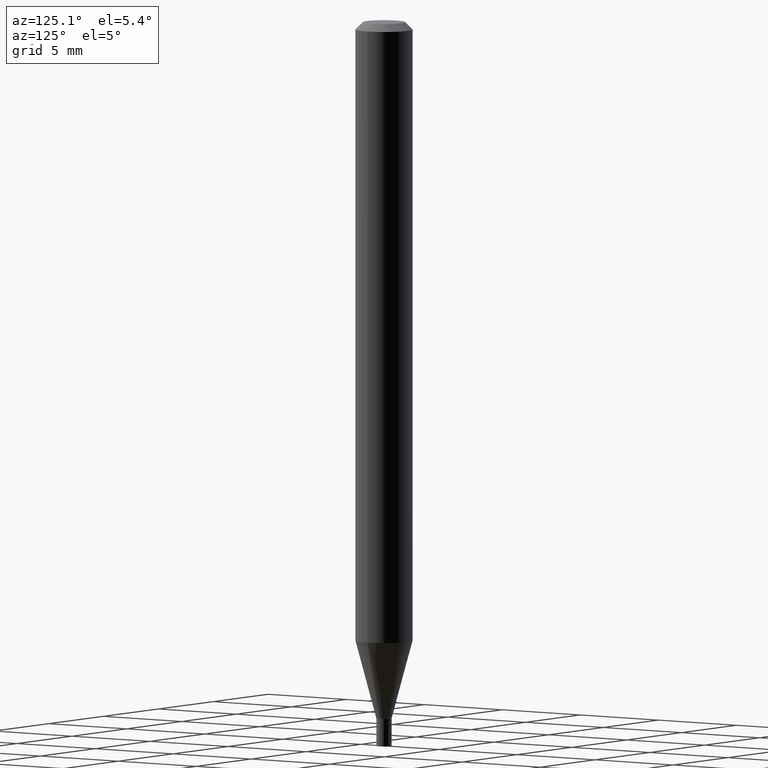
[diagram: clean part render]
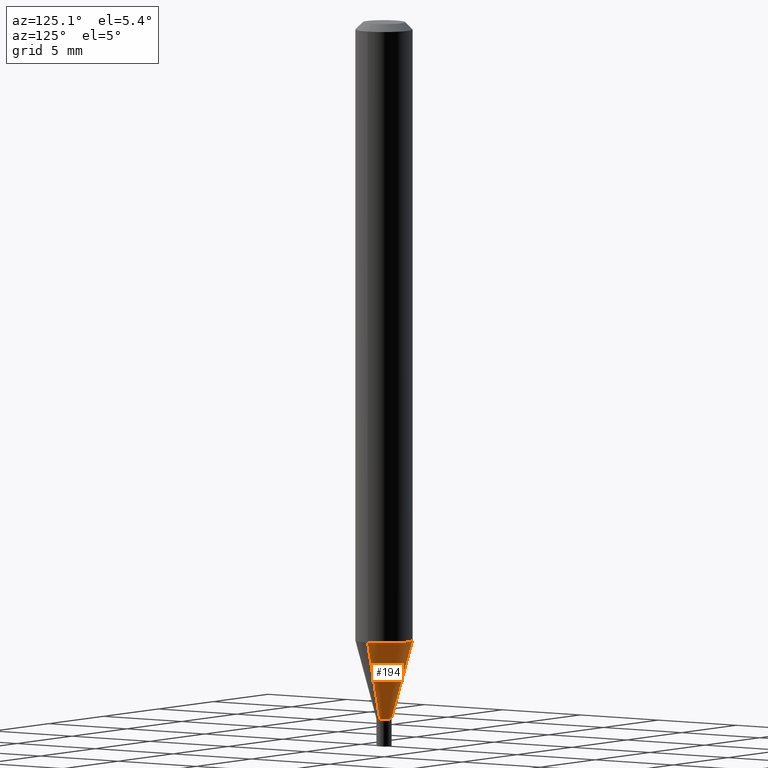
[diagram: same view with one face highlighted and labeled with its STEP entity id]
A machine part, auxiliary view. The second image highlights one B-rep face of the part: STEP entity #194.
In plain terms, the highlighted conical surface has half-angle 15 deg.
Its self-contained STEP definition (entity closure, byte-faithful):
#11 = CARTESIAN_POINT ( 'NONE',  ( 3.528811487325152432E-29, -5.038207571950659670E-15, -1.443000000000000060 ) ) ;
#15 = VERTEX_POINT ( 'NONE', #136 ) ;
#24 = ORIENTED_EDGE ( 'NONE', *, *, #282, .F. ) ;
#31 = VECTOR ( 'NONE', #255, 39.37007874015748143 ) ;
#38 = CARTESIAN_POINT ( 'NONE',  ( 3.528811487325152432E-29, -5.038207571950659670E-15, -1.443000000000000060 ) ) ;
#66 = EDGE_CURVE ( 'NONE', #277, #15, #425, .T. ) ;
#93 = LINE ( 'NONE', #120, #31 ) ;
#94 = VECTOR ( 'NONE', #310, 39.37007874015748143 ) ;
#113 = CONICAL_SURFACE ( 'NONE', #269, 0.01574999999999992725, 0.2617993877991502405 ) ;
#117 = DIRECTION ( 'NONE',  ( -2.445468806185136597E-29, 3.491481338843145583E-15, 1.000000000000000000 ) ) ;
#120 = CARTESIAN_POINT ( 'NONE',  ( -0.01574999999999992725, -4.926297091068444383E-15, -1.443000000000000060 ) ) ;
#136 = CARTESIAN_POINT ( 'NONE',  ( 0.05904999999999999832, -4.886335815082588610E-15, -1.281402200032268013 ) ) ;
#171 = CARTESIAN_POINT ( 'NONE',  ( 0.01574999999999992725, -5.148189234124217550E-15, -1.443000000000000060 ) ) ;
#172 = EDGE_LOOP ( 'NONE', ( #203, #309, #24, #283 ) ) ;
#174 = VERTEX_POINT ( 'NONE', #366 ) ;
#176 = CIRCLE ( 'NONE', #307, 0.05904999999999999832 ) ;
#183 = FACE_OUTER_BOUND ( 'NONE', #172, .T. ) ;
#194 = ADVANCED_FACE ( 'NONE', ( #183 ), #113, .T. ) ;
#203 = ORIENTED_EDGE ( 'NONE', *, *, #442, .T. ) ;
#248 = DIRECTION ( 'NONE',  ( -2.445468806185136597E-29, 3.491481338843145583E-15, 1.000000000000000000 ) ) ;
#255 = DIRECTION ( 'NONE',  ( -0.2588190451025215166, 5.211531920934551042E-15, 0.9659258262890679791 ) ) ;
#262 = DIRECTION ( 'NONE',  ( 1.000000000000000000, -6.982962677686273021E-15, 0.000000000000000000 ) ) ;
#269 = AXIS2_PLACEMENT_3D ( 'NONE', #38, #248, #363 ) ;
#277 = VERTEX_POINT ( 'NONE', #450 ) ;
#282 = EDGE_CURVE ( 'NONE', #15, #174, #176, .T. ) ;
#283 = ORIENTED_EDGE ( 'NONE', *, *, #66, .F. ) ;
#292 = DIRECTION ( 'NONE',  ( 1.000000000000000000, -6.982962677686257244E-15, 0.000000000000000000 ) ) ;
#294 = DIRECTION ( 'NONE',  ( -2.445468806185136597E-29, 3.491481338843145583E-15, 1.000000000000000000 ) ) ;
#307 = AXIS2_PLACEMENT_3D ( 'NONE', #328, #117, #262 ) ;
#308 = AXIS2_PLACEMENT_3D ( 'NONE', #11, #294, #292 ) ;
#309 = ORIENTED_EDGE ( 'NONE', *, *, #325, .T. ) ;
#310 = DIRECTION ( 'NONE',  ( 0.2588190451025215166, 1.565188264969620784E-15, 0.9659258262890679791 ) ) ;
#325 = EDGE_CURVE ( 'NONE', #451, #174, #93, .T. ) ;
#328 = CARTESIAN_POINT ( 'NONE',  ( 3.133629108355918061E-29, -4.473991868965215268E-15, -1.281402200032268013 ) ) ;
#349 = CIRCLE ( 'NONE', #308, 0.01574999999999992725 ) ;
#363 = DIRECTION ( 'NONE',  ( 1.000000000000000000, -6.982962677686257244E-15, 0.000000000000000000 ) ) ;
#366 = CARTESIAN_POINT ( 'NONE',  ( -0.05904999999999999832, -4.054416383498875775E-15, -1.281402200032268013 ) ) ;
#397 = CARTESIAN_POINT ( 'NONE',  ( -0.01574999999999992725, -4.490356737283660473E-15, -1.443000000000000060 ) ) ;
#425 = LINE ( 'NONE', #171, #94 ) ;
#442 = EDGE_CURVE ( 'NONE', #277, #451, #349, .T. ) ;
#450 = CARTESIAN_POINT ( 'NONE',  ( 0.01574999999999992725, -5.148189234124217550E-15, -1.443000000000000060 ) ) ;
#451 = VERTEX_POINT ( 'NONE', #397 ) ;